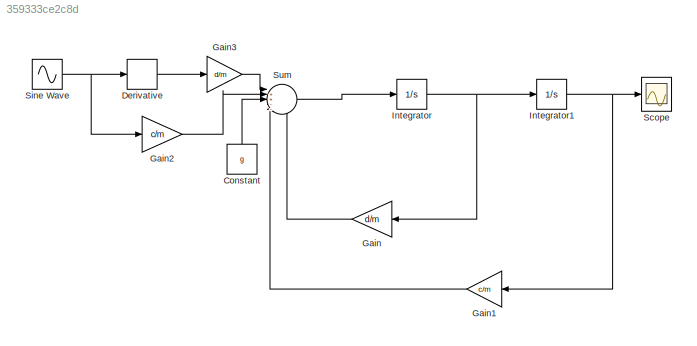
MODEL slx_359333ce2c8d
KIND model
CONFIG AbsTol = auto
CONFIG EnableMultiTasking = off
CONFIG FixedStep = 0.01
CONFIG MaxStep = auto
CONFIG MinStep = auto
CONFIG RelTol = 1e-3
CONFIG SampleTimeConstraint = Unconstrained
CONFIG SolverName = FixedStepAuto
CONFIG StartTime = 0.0
CONFIG StopTime = 5
BLOCK [Constant] Constant
  NameLocation = right
  Value = g
BLOCK [Derivative] Derivative
BLOCK [Gain] Gain
  Gain = d/m
  NameLocation = top
BLOCK [Gain] Gain1
  Gain = c/m
  NameLocation = top
BLOCK [Gain] Gain2
  Gain = c/m
BLOCK [Gain] Gain3
  Gain = d/m
BLOCK [Integrator] Integrator
BLOCK [Integrator] Integrator1
BLOCK [Scope] Scope
  Floating = off
  NumInputPorts = 1
  ScopeSpecificationString = Simulink.scopes.TimeScopeBlockCfg('CurrentConfiguration', extmgr.ConfigurationSet(extmgr.Configuration('Core','General UI',true),extmgr.Configuration('Core','Source UI',true),extmgr.Configuration('Sources','WiredSimulink',true),extmgr.Configuration('Visuals','Time Domain',true,'SerializedDisplays',{struct('MinYLimReal','-0.77995','MaxYLimReal','0.08666','YLabelReal','','MinYLimMag','0.00000','MaxY...<+1358ch>
BLOCK [Sin] Sine Wave
  Amplitude = 0.02
  Frequency = 2*pi*100
  Phase = pi/2
  SampleTime = 0
BLOCK [Sum] Sum
  Inputs = |++---
LINE Constant:1 -> Sum:3
LINE Derivative:1 -> Gain3:1
LINE Gain1:1 -> Sum:4
LINE Gain2:1 -> Sum:2
LINE Gain3:1 -> Sum:1
LINE Gain:1 -> Sum:5
NET Integrator1:1 -> Gain1:1, Scope:1
NET Integrator:1 -> Gain:1, Integrator1:1
NET Sine Wave:1 -> Derivative:1, Gain2:1
LINE Sum:1 -> Integrator:1
note: NET lines group one-source signal fan-out (src -> all destinations, sorted); 1:1 wires keep LINE
